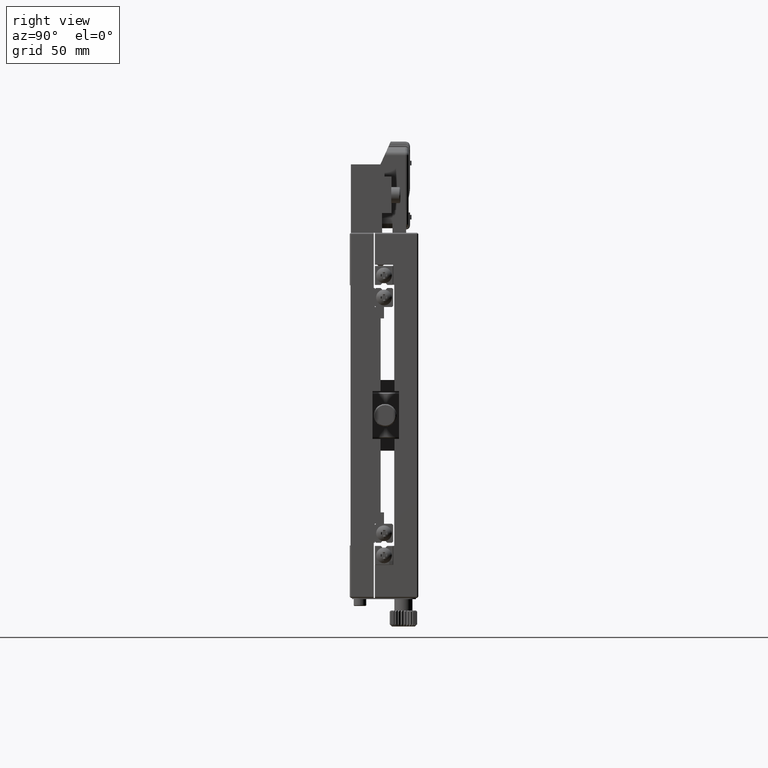
[diagram: clean part render]
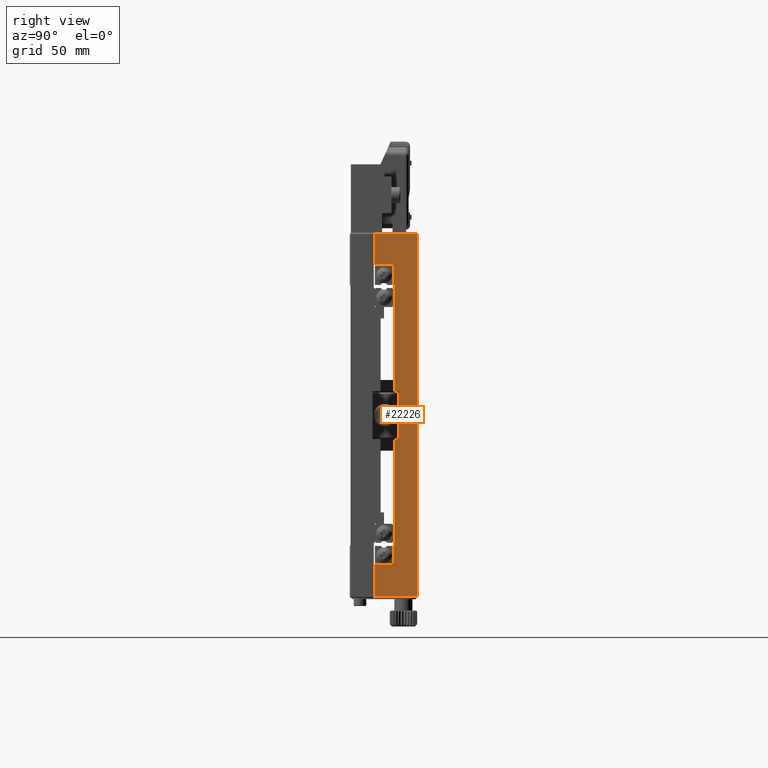
[diagram: same view with one face highlighted and labeled with its STEP entity id]
A machine part, right view. The second image highlights one B-rep face of the part: STEP entity #22226.
In plain terms, the highlighted planar face has unit normal (1, 0, 0).
Its self-contained STEP definition (entity closure, byte-faithful):
#183 = CARTESIAN_POINT ( 'NONE',  ( 0.000000000000000000, 19.00000000000000000, 57.20000000000000284 ) ) ;
#308 = VECTOR ( 'NONE', #23845, 1000.000000000000000 ) ;
#1104 = LINE ( 'NONE', #10450, #28032 ) ;
#2118 = EDGE_CURVE ( 'NONE', #13794, #4025, #33974, .T. ) ;
#2610 = VECTOR ( 'NONE', #3613, 1000.000000000000000 ) ;
#3043 = ORIENTED_EDGE ( 'NONE', *, *, #48752, .F. ) ;
#3277 = VECTOR ( 'NONE', #35712, 1000.000000000000000 ) ;
#3613 = DIRECTION ( 'NONE',  ( 0.000000000000000000, 0.000000000000000000, 1.000000000000000000 ) ) ;
#3872 = VERTEX_POINT ( 'NONE', #43530 ) ;
#3903 = VECTOR ( 'NONE', #10575, 1000.000000000000000 ) ;
#4025 = VERTEX_POINT ( 'NONE', #40670 ) ;
#5154 = CARTESIAN_POINT ( 'NONE',  ( 0.000000000000000000, 21.50000000000000000, 10.50000000000000000 ) ) ;
#6145 = EDGE_CURVE ( 'NONE', #32339, #4025, #10639, .T. ) ;
#6307 = LINE ( 'NONE', #54564, #54190 ) ;
#6773 = DIRECTION ( 'NONE',  ( 0.000000000000000000, 0.000000000000000000, -1.000000000000000000 ) ) ;
#6785 = LINE ( 'NONE', #31214, #46003 ) ;
#8020 = VERTEX_POINT ( 'NONE', #45021 ) ;
#8306 = EDGE_CURVE ( 'NONE', #37013, #53487, #1104, .T. ) ;
#9253 = VERTEX_POINT ( 'NONE', #38722 ) ;
#10045 = VECTOR ( 'NONE', #55870, 1000.000000000000000 ) ;
#10303 = CARTESIAN_POINT ( 'NONE',  ( 0.000000000000000000, 19.00000000000000000, 0.000000000000000000 ) ) ;
#10450 = CARTESIAN_POINT ( 'NONE',  ( 0.000000000000000000, 11.00000000000000000, -10.50000000000000000 ) ) ;
#10575 = DIRECTION ( 'NONE',  ( 0.000000000000000000, 0.000000000000000000, -1.000000000000000000 ) ) ;
#10639 = LINE ( 'NONE', #57997, #308 ) ;
#10751 = LINE ( 'NONE', #31355, #43202 ) ;
#11590 = CARTESIAN_POINT ( 'NONE',  ( 0.000000000000000000, 19.50000000000000000, -10.50000000000000000 ) ) ;
#11874 = EDGE_CURVE ( 'NONE', #14265, #53755, #6785, .T. ) ;
#13708 = VECTOR ( 'NONE', #14852, 1000.000000000000000 ) ;
#13751 = LINE ( 'NONE', #52623, #48644 ) ;
#13794 = VERTEX_POINT ( 'NONE', #20245 ) ;
#14265 = VERTEX_POINT ( 'NONE', #45846 ) ;
#14852 = DIRECTION ( 'NONE',  ( -0.000000000000000000, -1.000000000000000000, -5.551115123125780178E-14 ) ) ;
#15108 = EDGE_CURVE ( 'NONE', #53487, #47090, #46761, .T. ) ;
#15481 = EDGE_CURVE ( 'NONE', #9253, #36546, #6307, .T. ) ;
#16159 = VERTEX_POINT ( 'NONE', #57188 ) ;
#16443 = ORIENTED_EDGE ( 'NONE', *, *, #2118, .F. ) ;
#17184 = ORIENTED_EDGE ( 'NONE', *, *, #41560, .T. ) ;
#17653 = ORIENTED_EDGE ( 'NONE', *, *, #54607, .T. ) ;
#17882 = ORIENTED_EDGE ( 'NONE', *, *, #40914, .T. ) ;
#18425 = FACE_OUTER_BOUND ( 'NONE', #61484, .T. ) ;
#18635 = LINE ( 'NONE', #33359, #2610 ) ;
#19413 = CARTESIAN_POINT ( 'NONE',  ( 5.421010862427522170E-17, 11.00000000000000000, -79.50000000000000000 ) ) ;
#20022 = LINE ( 'NONE', #44456, #3903 ) ;
#20245 = CARTESIAN_POINT ( 'NONE',  ( 0.000000000000000000, 19.50000000000000000, 57.20000000000001705 ) ) ;
#20810 = DIRECTION ( 'NONE',  ( 0.000000000000000000, -1.000000000000000000, -0.000000000000000000 ) ) ;
#21454 = EDGE_CURVE ( 'NONE', #36546, #16159, #25562, .T. ) ;
#21772 = DIRECTION ( 'NONE',  ( 0.000000000000000000, 0.000000000000000000, -1.000000000000000000 ) ) ;
#21783 = CARTESIAN_POINT ( 'NONE',  ( 0.000000000000000000, 19.50000000000000000, -57.20000000000000284 ) ) ;
#21941 = CARTESIAN_POINT ( 'NONE',  ( 0.000000000000000000, 11.00000000000000000, 66.00000000000000000 ) ) ;
#22226 = ADVANCED_FACE ( 'NONE', ( #18425 ), #61385, .T. ) ;
#22815 = VECTOR ( 'NONE', #35064, 1000.000000000000000 ) ;
#22859 = VECTOR ( 'NONE', #21772, 1000.000000000000000 ) ;
#23845 = DIRECTION ( 'NONE',  ( 0.000000000000000000, 0.000000000000000000, -1.000000000000000000 ) ) ;
#24735 = ORIENTED_EDGE ( 'NONE', *, *, #36080, .T. ) ;
#25453 = VECTOR ( 'NONE', #54245, 1000.000000000000000 ) ;
#25562 = LINE ( 'NONE', #30881, #47059 ) ;
#26475 = CARTESIAN_POINT ( 'NONE',  ( 0.000000000000000000, 21.50000000000000000, 0.000000000000000000 ) ) ;
#27722 = ORIENTED_EDGE ( 'NONE', *, *, #15108, .T. ) ;
#28032 = VECTOR ( 'NONE', #20810, 1000.000000000000000 ) ;
#29051 = EDGE_CURVE ( 'NONE', #3872, #47334, #10751, .T. ) ;
#29230 = ORIENTED_EDGE ( 'NONE', *, *, #6145, .T. ) ;
#29915 = VECTOR ( 'NONE', #31040, 1000.000000000000000 ) ;
#30058 = AXIS2_PLACEMENT_3D ( 'NONE', #52573, #47863, #37219 ) ;
#30881 = CARTESIAN_POINT ( 'NONE',  ( 0.000000000000000000, 11.00000000000000000, 0.000000000000000000 ) ) ;
#31040 = DIRECTION ( 'NONE',  ( -0.000000000000000000, 1.000000000000000000, 0.000000000000000000 ) ) ;
#31214 = CARTESIAN_POINT ( 'NONE',  ( 0.000000000000000000, 11.00000000000000000, 0.000000000000000000 ) ) ;
#31349 = CARTESIAN_POINT ( 'NONE',  ( 0.000000000000000000, 21.50000000000000000, -10.50000000000000000 ) ) ;
#31355 = CARTESIAN_POINT ( 'NONE',  ( 0.000000000000000000, 11.00000000000000000, 10.50000000000000000 ) ) ;
#31895 = EDGE_CURVE ( 'NONE', #16159, #32339, #46390, .T. ) ;
#32339 = VERTEX_POINT ( 'NONE', #37802 ) ;
#33359 = CARTESIAN_POINT ( 'NONE',  ( 0.000000000000000000, 29.50000000000000000, 0.000000000000000000 ) ) ;
#33798 = DIRECTION ( 'NONE',  ( 0.000000000000000000, -1.000000000000000000, -0.000000000000000000 ) ) ;
#33974 = LINE ( 'NONE', #183, #13708 ) ;
#34172 = LINE ( 'NONE', #49221, #25453 ) ;
#35064 = DIRECTION ( 'NONE',  ( 0.000000000000000000, 0.000000000000000000, -1.000000000000000000 ) ) ;
#35142 = ORIENTED_EDGE ( 'NONE', *, *, #29051, .T. ) ;
#35225 = VERTEX_POINT ( 'NONE', #38952 ) ;
#35712 = DIRECTION ( 'NONE',  ( -0.000000000000000000, 1.000000000000000000, 0.000000000000000000 ) ) ;
#35721 = LINE ( 'NONE', #54873, #29915 ) ;
#36080 = EDGE_CURVE ( 'NONE', #35225, #14265, #13751, .T. ) ;
#36546 = VERTEX_POINT ( 'NONE', #40213 ) ;
#37013 = VERTEX_POINT ( 'NONE', #31349 ) ;
#37219 = DIRECTION ( 'NONE',  ( 0.000000000000000000, 0.000000000000000000, -1.000000000000000000 ) ) ;
#37802 = CARTESIAN_POINT ( 'NONE',  ( 0.000000000000000000, 19.00000000000000000, 66.00000000000000000 ) ) ;
#38298 = EDGE_CURVE ( 'NONE', #8020, #9253, #18635, .T. ) ;
#38722 = CARTESIAN_POINT ( 'NONE',  ( 2.766398021465085097E-18, 29.50000000000000355, 79.50000000000001421 ) ) ;
#38952 = CARTESIAN_POINT ( 'NONE',  ( 0.000000000000000000, 19.00000000000000000, -65.50000000000000000 ) ) ;
#39444 = LINE ( 'NONE', #10303, #22815 ) ;
#39500 = DIRECTION ( 'NONE',  ( 0.000000000000000000, -1.000000000000000000, -0.000000000000000000 ) ) ;
#39589 = DIRECTION ( 'NONE',  ( -0.000000000000000000, 1.000000000000000000, 0.000000000000000000 ) ) ;
#40213 = CARTESIAN_POINT ( 'NONE',  ( 0.000000000000000000, 11.00000000000000000, 79.50000000000000000 ) ) ;
#40670 = CARTESIAN_POINT ( 'NONE',  ( 0.000000000000000000, 19.00000000000000000, 57.20000000000000284 ) ) ;
#40914 = EDGE_CURVE ( 'NONE', #47334, #37013, #44680, .T. ) ;
#41560 = EDGE_CURVE ( 'NONE', #13794, #3872, #20022, .T. ) ;
#41728 = ORIENTED_EDGE ( 'NONE', *, *, #15481, .T. ) ;
#41758 = CARTESIAN_POINT ( 'NONE',  ( 0.000000000000000000, 19.50000000000000000, 0.000000000000000000 ) ) ;
#42657 = ORIENTED_EDGE ( 'NONE', *, *, #11874, .T. ) ;
#43202 = VECTOR ( 'NONE', #39589, 1000.000000000000000 ) ;
#43530 = CARTESIAN_POINT ( 'NONE',  ( 0.000000000000000000, 19.50000000000000000, 10.50000000000000178 ) ) ;
#44456 = CARTESIAN_POINT ( 'NONE',  ( 0.000000000000000000, 19.50000000000000000, 0.000000000000000000 ) ) ;
#44630 = ORIENTED_EDGE ( 'NONE', *, *, #38298, .T. ) ;
#44680 = LINE ( 'NONE', #26475, #22859 ) ;
#45021 = CARTESIAN_POINT ( 'NONE',  ( 6.776263578034402713E-17, 29.50000000000000355, -79.50000000000001421 ) ) ;
#45846 = CARTESIAN_POINT ( 'NONE',  ( 0.000000000000000000, 11.00000000000000000, -65.50000000000000000 ) ) ;
#46003 = VECTOR ( 'NONE', #55658, 1000.000000000000000 ) ;
#46390 = LINE ( 'NONE', #21941, #3277 ) ;
#46761 = LINE ( 'NONE', #41758, #10045 ) ;
#47059 = VECTOR ( 'NONE', #6773, 1000.000000000000000 ) ;
#47090 = VERTEX_POINT ( 'NONE', #21783 ) ;
#47334 = VERTEX_POINT ( 'NONE', #5154 ) ;
#47863 = DIRECTION ( 'NONE',  ( 1.000000000000000000, 0.000000000000000000, 0.000000000000000000 ) ) ;
#48644 = VECTOR ( 'NONE', #33798, 1000.000000000000000 ) ;
#48752 = EDGE_CURVE ( 'NONE', #49200, #47090, #34172, .T. ) ;
#49200 = VERTEX_POINT ( 'NONE', #59752 ) ;
#49221 = CARTESIAN_POINT ( 'NONE',  ( 0.000000000000000000, 19.50000000000000000, -57.20000000000000284 ) ) ;
#49426 = ORIENTED_EDGE ( 'NONE', *, *, #21454, .T. ) ;
#50807 = ORIENTED_EDGE ( 'NONE', *, *, #57637, .T. ) ;
#52573 = CARTESIAN_POINT ( 'NONE',  ( 0.000000000000000000, 11.00000000000000000, 0.000000000000000000 ) ) ;
#52623 = CARTESIAN_POINT ( 'NONE',  ( 0.000000000000000000, 11.00000000000000000, -65.50000000000000000 ) ) ;
#53487 = VERTEX_POINT ( 'NONE', #11590 ) ;
#53755 = VERTEX_POINT ( 'NONE', #19413 ) ;
#54190 = VECTOR ( 'NONE', #39500, 1000.000000000000000 ) ;
#54245 = DIRECTION ( 'NONE',  ( -0.000000000000000000, 1.000000000000000000, 0.000000000000000000 ) ) ;
#54564 = CARTESIAN_POINT ( 'NONE',  ( 0.000000000000000000, 11.00000000000000000, 79.50000000000000000 ) ) ;
#54607 = EDGE_CURVE ( 'NONE', #49200, #35225, #39444, .T. ) ;
#54873 = CARTESIAN_POINT ( 'NONE',  ( 0.000000000000000000, 11.00000000000000000, -79.50000000000000000 ) ) ;
#55658 = DIRECTION ( 'NONE',  ( 0.000000000000000000, 0.000000000000000000, -1.000000000000000000 ) ) ;
#55870 = DIRECTION ( 'NONE',  ( 0.000000000000000000, 0.000000000000000000, -1.000000000000000000 ) ) ;
#56063 = ORIENTED_EDGE ( 'NONE', *, *, #8306, .T. ) ;
#57188 = CARTESIAN_POINT ( 'NONE',  ( 0.000000000000000000, 11.00000000000000000, 66.00000000000000000 ) ) ;
#57637 = EDGE_CURVE ( 'NONE', #53755, #8020, #35721, .T. ) ;
#57997 = CARTESIAN_POINT ( 'NONE',  ( 0.000000000000000000, 19.00000000000000000, 0.000000000000000000 ) ) ;
#59752 = CARTESIAN_POINT ( 'NONE',  ( 0.000000000000000000, 19.00000000000000000, -57.20000000000000284 ) ) ;
#60699 = ORIENTED_EDGE ( 'NONE', *, *, #31895, .T. ) ;
#61385 = PLANE ( 'NONE',  #30058 ) ;
#61484 = EDGE_LOOP ( 'NONE', ( #42657, #50807, #44630, #41728, #49426, #60699, #29230, #16443, #17184, #35142, #17882, #56063, #27722, #3043, #17653, #24735 ) ) ;